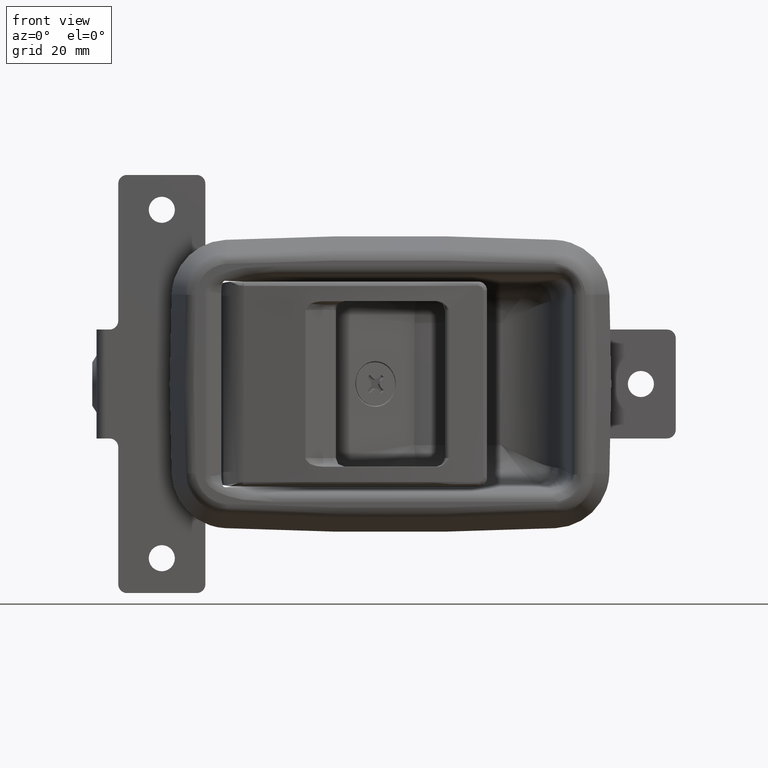
[diagram: clean part render]
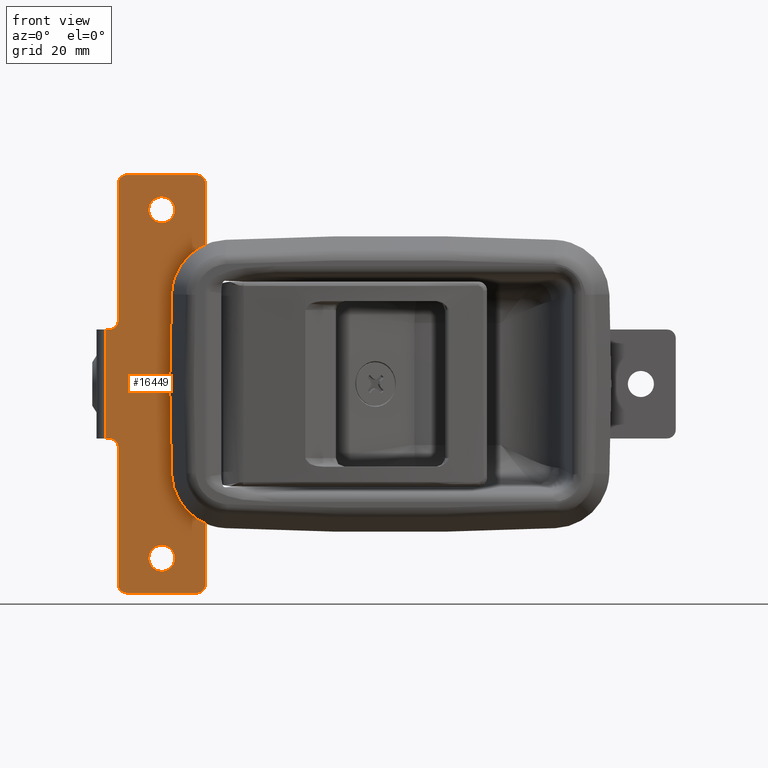
[diagram: same view with one face highlighted and labeled with its STEP entity id]
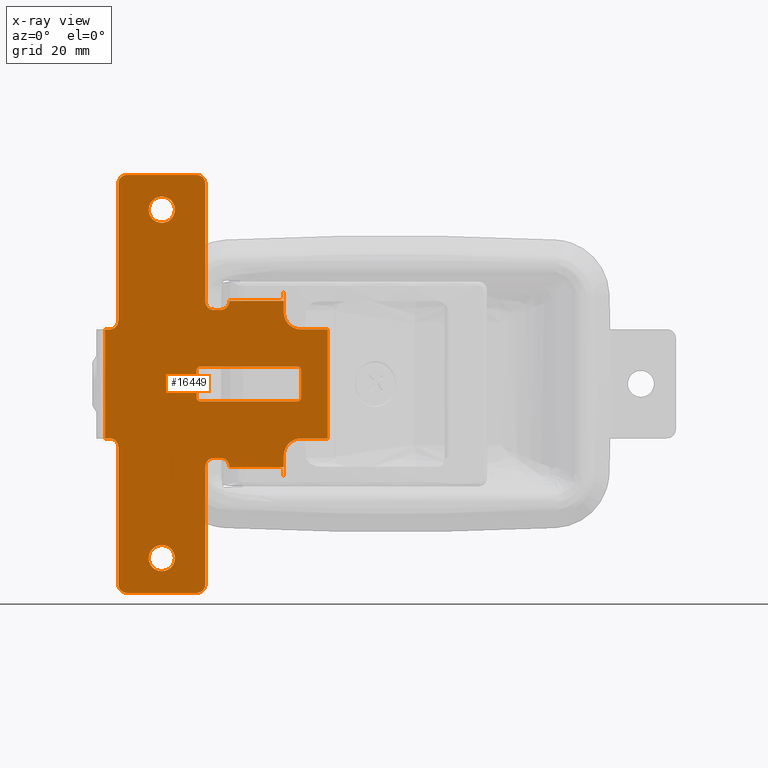
[diagram: x-ray of the same camera — body ghosted, the highlighted face saturated]
A machine part, front view. The second image highlights one B-rep face of the part: STEP entity #16449.
The next image is the same camera in x-ray: the body ghosted, the highlighted face saturated — about 0% of this face is hidden behind the body in this view.
In plain terms, the highlighted face is a freeform B-spline surface patch.
Its self-contained STEP definition (entity closure, byte-faithful):
#13076=CARTESIAN_POINT('',(-50.397271736084249,6.999999999999779,-42.140151655007962));
#13077=VERTEX_POINT('',#13076);
#13083=CARTESIAN_POINT('',(-49.500000000000803,6.999999999999779,-40.000402198321268));
#13084=VERTEX_POINT('',#13083);
#13085=CARTESIAN_POINT('',(-49.500000000000803,6.999999999999779,-40.000402198321268));
#13086=CARTESIAN_POINT('',(-49.499915021884469,6.999999999999769,-40.273393507080513));
#13087=CARTESIAN_POINT('',(-49.571605345450557,6.999999999999798,-40.794490806161029));
#13088=CARTESIAN_POINT('',(-49.881096098646950,6.999999999999767,-41.532484478625619));
#13089=CARTESIAN_POINT('',(-50.202493710219272,6.999999999999794,-41.948874950895707));
#13090=CARTESIAN_POINT('',(-50.397271736084249,6.999999999999779,-42.140151655007962));
#13091=B_SPLINE_CURVE_WITH_KNOTS('',3,(#13085,#13086,#13087,#13088,#13089,#13090),.UNSPECIFIED.,.F.,.U.,(4,1,1,4),(0.000000034594755,0.818969943332492,1.563463228283870,2.382433446539172),.UNSPECIFIED.);
#13092=EDGE_CURVE('',#13084,#13077,#13091,.T.);
#13094=CARTESIAN_POINT('',(-52.500000000000000,6.999999999999780,-37.000399999999999));
#13095=VERTEX_POINT('',#13094);
#13096=CARTESIAN_POINT('',(-52.500000000000000,6.999999999999780,-37.000399999999999));
#13097=CARTESIAN_POINT('',(-52.279107852984048,6.999999999999807,-37.000364353057002));
#13098=CARTESIAN_POINT('',(-51.812782814987912,6.999999999999749,-37.052112312268370));
#13099=CARTESIAN_POINT('',(-51.090971899863177,6.999999999999794,-37.310310896146689));
#13100=CARTESIAN_POINT('',(-50.360574108365043,6.999999999999783,-37.824497091868757));
#13101=CARTESIAN_POINT('',(-49.856138953298981,6.999999999999757,-38.504714276906910));
#13102=CARTESIAN_POINT('',(-49.563418472098803,6.999999999999798,-39.264143457633352));
#13103=CARTESIAN_POINT('',(-49.499911287116397,6.999999999999770,-39.730416920678657));
#13104=CARTESIAN_POINT('',(-49.500000000000803,6.999999999999779,-40.000402198321268));
#13105=B_SPLINE_CURVE_WITH_KNOTS('',3,(#13096,#13097,#13098,#13099,#13100,#13101,#13102,#13103,#13104),.UNSPECIFIED.,.F.,.U.,(4,1,1,1,1,1,4),(0.000000119910341,0.662691549555273,1.399027470609024,2.282632009719410,3.313475670911278,3.902547721432993,4.712508472048155),.UNSPECIFIED.);
#13106=EDGE_CURVE('',#13095,#13084,#13105,.T.);
#13108=CARTESIAN_POINT('',(-55.499999999999197,6.999999999999780,-40.000397801678751));
#13109=VERTEX_POINT('',#13108);
#13110=CARTESIAN_POINT('',(-55.499999999999197,6.999999999999780,-40.000397801678751));
#13111=CARTESIAN_POINT('',(-55.500515740335402,6.999999999999774,-39.583047256196537));
#13112=CARTESIAN_POINT('',(-55.380366606545657,6.999999999999774,-39.018962657673072));
#13113=CARTESIAN_POINT('',(-55.020501193802993,6.999999999999789,-38.346179224878249));
#13114=CARTESIAN_POINT('',(-54.686742957367038,6.999999999999764,-37.918452606027763));
#13115=CARTESIAN_POINT('',(-54.163926478736613,6.999999999999794,-37.467301247367999));
#13116=CARTESIAN_POINT('',(-53.432587850246883,6.999999999999774,-37.099195247213132));
#13117=CARTESIAN_POINT('',(-52.819081340911040,6.999999999999783,-37.000251826227341));
#13118=CARTESIAN_POINT('',(-52.500000000000000,6.999999999999780,-37.000399999999999));
#13119=B_SPLINE_CURVE_WITH_KNOTS('',3,(#13110,#13111,#13112,#13113,#13114,#13115,#13116,#13117,#13118),.UNSPECIFIED.,.F.,.U.,(4,1,1,1,1,1,4),(0.000000122921777,1.251763058692100,1.693578903280385,2.282630815331864,2.871653583737160,3.755285162575500,4.712505993965913),.UNSPECIFIED.);
#13120=EDGE_CURVE('',#13109,#13095,#13119,.T.);
#13122=CARTESIAN_POINT('',(-54.639750868406743,6.999999999999780,-42.103127496413308));
#13123=VERTEX_POINT('',#13122);
#13124=CARTESIAN_POINT('',(-54.639750868406743,6.999999999999780,-42.103127496413308));
#13125=CARTESIAN_POINT('',(-54.929398377762212,6.999999999999746,-41.809154654073232));
#13126=CARTESIAN_POINT('',(-55.356755408142497,6.999999999999854,-41.140911878216158));
#13127=CARTESIAN_POINT('',(-55.500314057512043,6.999999999999720,-40.364512244998643));
#13128=CARTESIAN_POINT('',(-55.499999999999197,6.999999999999780,-40.000397801678751));
#13129=B_SPLINE_CURVE_WITH_KNOTS('',3,(#13124,#13125,#13126,#13127,#13128),.UNSPECIFIED.,.F.,.U.,(4,1,4),(0.000000049651736,1.237840974256071,2.330073837828799),.UNSPECIFIED.);
#13130=EDGE_CURVE('',#13123,#13109,#13129,.T.);
#13166=CARTESIAN_POINT('',(-52.500000000000000,6.999999999999780,-43.000399999999999));
#13167=VERTEX_POINT('',#13166);
#13168=CARTESIAN_POINT('',(-52.500000000000000,6.999999999999780,-43.000399999999999));
#13169=CARTESIAN_POINT('',(-52.822642057992823,6.999999999999772,-43.000585053264267));
#13170=CARTESIAN_POINT('',(-53.343651045187350,6.999999999999786,-42.915482703621763));
#13171=CARTESIAN_POINT('',(-54.071726342065027,6.999999999999775,-42.588668359376733));
#13172=CARTESIAN_POINT('',(-54.448475736909131,6.999999999999780,-42.297905204125662));
#13173=CARTESIAN_POINT('',(-54.639750868406743,6.999999999999780,-42.103127496413308));
#13174=B_SPLINE_CURVE_WITH_KNOTS('',3,(#13168,#13169,#13170,#13171,#13172,#13173),.UNSPECIFIED.,.F.,.U.,(4,1,1,4),(0.000000034540104,0.967873704512001,1.563464382117405,2.382435204734763),.UNSPECIFIED.);
#13175=EDGE_CURVE('',#13167,#13123,#13174,.T.);
#13177=CARTESIAN_POINT('',(-50.397271736084249,6.999999999999779,-42.140151655007962));
#13178=CARTESIAN_POINT('',(-50.691243696684303,6.999999999999792,-42.429797785669479));
#13179=CARTESIAN_POINT('',(-51.359487893226557,6.999999999999753,-42.857157351149631));
#13180=CARTESIAN_POINT('',(-52.135885200983957,6.999999999999792,-43.000712339304080));
#13181=CARTESIAN_POINT('',(-52.500000000000000,6.999999999999780,-43.000399999999999));
#13182=B_SPLINE_CURVE_WITH_KNOTS('',3,(#13177,#13178,#13179,#13180,#13181),.UNSPECIFIED.,.F.,.U.,(4,1,4),(0.000000049599672,1.237840030941143,2.330072062219895),.UNSPECIFIED.);
#13183=EDGE_CURVE('',#13077,#13167,#13182,.T.);
#13272=CARTESIAN_POINT('',(-50.397271736084249,6.999999999999779,37.860248344992037));
#13273=VERTEX_POINT('',#13272);
#13279=CARTESIAN_POINT('',(-49.500000000000803,6.999999999999779,39.999997801678717));
#13280=VERTEX_POINT('',#13279);
#13281=CARTESIAN_POINT('',(-49.500000000000803,6.999999999999779,39.999997801678717));
#13282=CARTESIAN_POINT('',(-49.499817106153927,6.999999999999775,39.677355585545449));
#13283=CARTESIAN_POINT('',(-49.584912796515617,6.999999999999785,39.156345510135317));
#13284=CARTESIAN_POINT('',(-49.911737291225769,6.999999999999771,38.428277560781822));
#13285=CARTESIAN_POINT('',(-50.202488533235893,6.999999999999772,38.051518046914190));
#13286=CARTESIAN_POINT('',(-50.397271736084249,6.999999999999779,37.860248344992037));
#13287=B_SPLINE_CURVE_WITH_KNOTS('',3,(#13281,#13282,#13283,#13284,#13285,#13286),.UNSPECIFIED.,.F.,.U.,(4,1,1,4),(0.000000034594272,0.967872990247855,1.563463228284002,2.382433446539150),.UNSPECIFIED.);
#13288=EDGE_CURVE('',#13280,#13273,#13287,.T.);
#13290=CARTESIAN_POINT('',(-52.500000000000000,6.999999999999780,43.0));
#13291=VERTEX_POINT('',#13290);
#13292=CARTESIAN_POINT('',(-52.500000000000000,6.999999999999780,43.0));
#13293=CARTESIAN_POINT('',(-52.180904270041772,6.999999999999769,43.000200106539637));
#13294=CARTESIAN_POINT('',(-51.714703555315417,6.999999999999800,42.924863208586217));
#13295=CARTESIAN_POINT('',(-51.100822945843092,6.999999999999767,42.670509736029622));
#13296=CARTESIAN_POINT('',(-50.517230615457827,6.999999999999798,42.301288633988271));
#13297=CARTESIAN_POINT('',(-49.948528679503099,6.999999999999771,41.673795602870143));
#13298=CARTESIAN_POINT('',(-49.576683731106499,6.999999999999778,40.834462298434232));
#13299=CARTESIAN_POINT('',(-49.499922089325239,6.999999999999786,40.269981439212792));
#13300=CARTESIAN_POINT('',(-49.500000000000803,6.999999999999779,39.999997801678717));
#13301=B_SPLINE_CURVE_WITH_KNOTS('',3,(#13292,#13293,#13294,#13295,#13296,#13297,#13298,#13299,#13300),.UNSPECIFIED.,.F.,.U.,(4,1,1,1,1,1,4),(0.000000119918266,0.957219569237008,1.399027470612974,1.988122082081094,3.018934395677817,3.902547721433423,4.712508472048163),.UNSPECIFIED.);
#13302=EDGE_CURVE('',#13291,#13280,#13301,.T.);
#13304=CARTESIAN_POINT('',(-55.499999999999190,6.999999999999780,40.000002198321262));
#13305=VERTEX_POINT('',#13304);
#13306=CARTESIAN_POINT('',(-55.499999999999190,6.999999999999780,40.000002198321262));
#13307=CARTESIAN_POINT('',(-55.500132818561767,6.999999999999783,40.319073011132261));
#13308=CARTESIAN_POINT('',(-55.393369600634607,6.999999999999782,40.981719837193268));
#13309=CARTESIAN_POINT('',(-54.982518528866343,6.999999999999782,41.750536596369550));
#13310=CARTESIAN_POINT('',(-54.438124050215173,6.999999999999772,42.321992669687098));
#13311=CARTESIAN_POINT('',(-53.841913621423032,6.999999999999794,42.720515049955331));
#13312=CARTESIAN_POINT('',(-53.162677962510237,6.999999999999754,42.954108250615057));
#13313=CARTESIAN_POINT('',(-52.696341805930743,6.999999999999803,43.000015634157279));
#13314=CARTESIAN_POINT('',(-52.500000000000000,6.999999999999780,43.0));
#13315=B_SPLINE_CURVE_WITH_KNOTS('',3,(#13306,#13307,#13308,#13309,#13310,#13311,#13312,#13313,#13314),.UNSPECIFIED.,.F.,.U.,(4,1,1,1,1,1,4),(0.000000122918992,0.957219068403689,1.988121039895063,2.577120609119618,3.313473929090527,4.123466470492354,4.712505993965944),.UNSPECIFIED.);
#13316=EDGE_CURVE('',#13305,#13291,#13315,.T.);
#13318=CARTESIAN_POINT('',(-54.639750868406743,6.999999999999780,37.897272503586692));
#13319=VERTEX_POINT('',#13318);
#13320=CARTESIAN_POINT('',(-54.639750868406743,6.999999999999780,37.897272503586692));
#13321=CARTESIAN_POINT('',(-54.861059450735098,6.999999999999789,38.122213222471707));
#13322=CARTESIAN_POINT('',(-55.160160982369682,6.999999999999778,38.542704857663360));
#13323=CARTESIAN_POINT('',(-55.438025403879053,6.999999999999786,39.271912182519372));
#13324=CARTESIAN_POINT('',(-55.500077623816637,6.999999999999774,39.733011312248998));
#13325=CARTESIAN_POINT('',(-55.499999999999190,6.999999999999780,40.000002198321262));
#13326=B_SPLINE_CURVE_WITH_KNOTS('',3,(#13320,#13321,#13322,#13323,#13324,#13325),.UNSPECIFIED.,.F.,.U.,(4,1,1,4),(0.000000049651116,0.946609162470924,1.529101274212253,2.330073837828830),.UNSPECIFIED.);
#13327=EDGE_CURVE('',#13319,#13305,#13326,.T.);
#13363=CARTESIAN_POINT('',(-52.500000000000000,6.999999999999780,37.0));
#13364=VERTEX_POINT('',#13363);
#13365=CARTESIAN_POINT('',(-52.500000000000000,6.999999999999780,37.0));
#13366=CARTESIAN_POINT('',(-52.772991745464942,6.999999999999789,36.999914425652499));
#13367=CARTESIAN_POINT('',(-53.294088562901123,6.999999999999764,37.071605350689957));
#13368=CARTESIAN_POINT('',(-54.032083459133560,6.999999999999779,37.381096450817360));
#13369=CARTESIAN_POINT('',(-54.448473869047518,6.999999999999785,37.702493665574792));
#13370=CARTESIAN_POINT('',(-54.639750868406743,6.999999999999780,37.897272503586692));
#13371=B_SPLINE_CURVE_WITH_KNOTS('',3,(#13365,#13366,#13367,#13368,#13369,#13370),.UNSPECIFIED.,.F.,.U.,(4,1,1,4),(0.000000034539853,0.818970547751233,1.563464382117327,2.382435204734762),.UNSPECIFIED.);
#13372=EDGE_CURVE('',#13364,#13319,#13371,.T.);
#13374=CARTESIAN_POINT('',(-50.397271736084249,6.999999999999779,37.860248344992037));
#13375=CARTESIAN_POINT('',(-50.656760458748082,6.999999999999786,37.604827966700647));
#13376=CARTESIAN_POINT('',(-51.311127457472097,6.999999999999762,37.162961367421417));
#13377=CARTESIAN_POINT('',(-52.087318498110598,6.999999999999790,36.999508900209101));
#13378=CARTESIAN_POINT('',(-52.500000000000000,6.999999999999780,37.0));
#13379=B_SPLINE_CURVE_WITH_KNOTS('',3,(#13374,#13375,#13376,#13377,#13378),.UNSPECIFIED.,.F.,.U.,(4,1,4),(0.000000049600241,1.092232080852542,2.330072062219885),.UNSPECIFIED.);
#13380=EDGE_CURVE('',#13273,#13364,#13379,.T.);
#13432=CARTESIAN_POINT('',(-14.407146339087159,6.999999999999821,-12.500000000000000));
#13433=VERTEX_POINT('',#13432);
#13448=CARTESIAN_POINT('',(-14.407146339087159,6.999999999999821,12.500000000000000));
#13449=VERTEX_POINT('',#13448);
#13457=CARTESIAN_POINT('',(-14.407146339087159,6.999999999999821,-12.500000000000000));
#13458=CARTESIAN_POINT('',(-14.407146339087159,6.999999999999821,12.500000000000000));
#13459=QUASI_UNIFORM_CURVE('',1,(#13457,#13458),.UNSPECIFIED.,.F.,.U.);
#13460=EDGE_CURVE('',#13433,#13449,#13459,.T.);
#13581=CARTESIAN_POINT('',(-65.500000000000000,6.999999999999821,-12.500000000000000));
#13582=VERTEX_POINT('',#13581);
#13596=CARTESIAN_POINT('',(-65.500000000000000,6.999999999999821,12.500000000000000));
#13597=VERTEX_POINT('',#13596);
#13598=CARTESIAN_POINT('',(-65.500000000000000,6.999999999999821,12.500000000000000));
#13599=CARTESIAN_POINT('',(-65.500000000000000,6.999999999999821,-12.500000000000000));
#13600=QUASI_UNIFORM_CURVE('',1,(#13598,#13599),.UNSPECIFIED.,.F.,.U.);
#13601=EDGE_CURVE('',#13597,#13582,#13600,.T.);
#13667=CARTESIAN_POINT('',(-24.538799999999998,6.999999999999821,21.100000000000001));
#13668=VERTEX_POINT('',#13667);
#13674=CARTESIAN_POINT('',(-24.500000000000000,6.999999999999780,21.100000000000001));
#13675=VERTEX_POINT('',#13674);
#13676=CARTESIAN_POINT('',(-24.538799999999998,6.999999999999821,21.100000000000001));
#13677=CARTESIAN_POINT('',(-24.500000000000000,6.999999999999780,21.100000000000001));
#13678=QUASI_UNIFORM_CURVE('',1,(#13676,#13677),.UNSPECIFIED.,.F.,.U.);
#13679=EDGE_CURVE('',#13668,#13675,#13678,.T.);
#13726=CARTESIAN_POINT('',(-24.500000000000000,6.999999999999780,-21.100000000000001));
#13727=VERTEX_POINT('',#13726);
#13739=CARTESIAN_POINT('',(-24.538799999999998,6.999999999999821,-21.100000000000001));
#13740=VERTEX_POINT('',#13739);
#13741=CARTESIAN_POINT('',(-24.500000000000000,6.999999999999780,-21.100000000000001));
#13742=CARTESIAN_POINT('',(-24.538799999999998,6.999999999999821,-21.100000000000001));
#13743=QUASI_UNIFORM_CURVE('',1,(#13741,#13742),.UNSPECIFIED.,.F.,.U.);
#13744=EDGE_CURVE('',#13727,#13740,#13743,.T.);
#13772=CARTESIAN_POINT('',(-37.0,6.999999999999780,-19.100000000000001));
#13773=VERTEX_POINT('',#13772);
#13774=CARTESIAN_POINT('',(-24.538799999999998,6.999999999999821,-19.100000000000001));
#13775=VERTEX_POINT('',#13774);
#13776=CARTESIAN_POINT('',(-37.0,6.999999999999780,-19.100000000000001));
#13777=CARTESIAN_POINT('',(-24.538799999999998,6.999999999999821,-19.100000000000001));
#13778=QUASI_UNIFORM_CURVE('',1,(#13776,#13777),.UNSPECIFIED.,.F.,.U.);
#13779=EDGE_CURVE('',#13773,#13775,#13778,.T.);
#13910=CARTESIAN_POINT('',(-24.538799999999998,6.999999999999821,-19.100000000000001));
#13911=CARTESIAN_POINT('',(-24.538799999999998,6.999999999999821,-21.100000000000001));
#13912=QUASI_UNIFORM_CURVE('',1,(#13910,#13911),.UNSPECIFIED.,.F.,.U.);
#13913=EDGE_CURVE('',#13775,#13740,#13912,.T.);
#13991=CARTESIAN_POINT('',(-24.538799999999998,6.999999999999821,19.100000000000001));
#13992=VERTEX_POINT('',#13991);
#13993=CARTESIAN_POINT('',(-37.0,6.999999999999821,19.100000000000001));
#13994=VERTEX_POINT('',#13993);
#13995=CARTESIAN_POINT('',(-24.538799999999998,6.999999999999821,19.100000000000001));
#13996=CARTESIAN_POINT('',(-37.0,6.999999999999821,19.100000000000001));
#13997=QUASI_UNIFORM_CURVE('',1,(#13995,#13996),.UNSPECIFIED.,.F.,.U.);
#13998=EDGE_CURVE('',#13992,#13994,#13997,.T.);
#14131=CARTESIAN_POINT('',(-24.538799999999998,6.999999999999821,19.100000000000001));
#14132=CARTESIAN_POINT('',(-24.538799999999998,6.999999999999821,21.100000000000001));
#14133=QUASI_UNIFORM_CURVE('',1,(#14131,#14132),.UNSPECIFIED.,.F.,.U.);
#14134=EDGE_CURVE('',#13992,#13668,#14133,.T.);
#14153=CARTESIAN_POINT('',(-43.538800000000002,6.999999999999901,4.0));
#14154=VERTEX_POINT('',#14153);
#14155=CARTESIAN_POINT('',(-44.538800000000002,6.999999999999901,3.0));
#14156=VERTEX_POINT('',#14155);
#14157=CARTESIAN_POINT('',(-43.538800000000002,6.999999999999901,4.0));
#14158=CARTESIAN_POINT('',(-43.694309905793787,6.999999999999909,4.000284208847530));
#14159=CARTESIAN_POINT('',(-43.923104275329209,6.999999999999894,3.945471579985655));
#14160=CARTESIAN_POINT('',(-44.199092552034863,6.999999999999908,3.765862319266904));
#14161=CARTESIAN_POINT('',(-44.354589974838447,6.999999999999905,3.594299400717589));
#14162=CARTESIAN_POINT('',(-44.497146400171410,6.999999999999890,3.335310182363074));
#14163=CARTESIAN_POINT('',(-44.538991723426093,6.999999999999911,3.139123575359947));
#14164=CARTESIAN_POINT('',(-44.538800000000002,6.999999999999901,3.0));
#14165=B_SPLINE_CURVE_WITH_KNOTS('',3,(#14157,#14158,#14159,#14160,#14161,#14162,#14163,#14164),.UNSPECIFIED.,.F.,.U.,(4,1,1,1,1,4),(0.000000316539192,0.466343486453466,0.687263051410439,0.981751020764432,1.153582026486022,1.570835744415496),.UNSPECIFIED.);
#14166=EDGE_CURVE('',#14154,#14156,#14165,.T.);
#14201=CARTESIAN_POINT('',(-21.500000000000000,6.999999999999901,4.0));
#14202=VERTEX_POINT('',#14201);
#14203=CARTESIAN_POINT('',(-21.500000000000000,6.999999999999901,4.0));
#14204=CARTESIAN_POINT('',(-43.538800000000002,6.999999999999901,4.0));
#14205=QUASI_UNIFORM_CURVE('',1,(#14203,#14204),.UNSPECIFIED.,.F.,.U.);
#14206=EDGE_CURVE('',#14202,#14154,#14205,.T.);
#14238=CARTESIAN_POINT('',(-20.500000000000000,6.999999999999901,3.0));
#14239=VERTEX_POINT('',#14238);
#14240=CARTESIAN_POINT('',(-20.500000000000000,6.999999999999901,3.0));
#14241=CARTESIAN_POINT('',(-20.499988649702491,6.999999999999905,3.098161484066635));
#14242=CARTESIAN_POINT('',(-20.533887464722419,6.999999999999901,3.327295164917384));
#14243=CARTESIAN_POINT('',(-20.691147990141879,6.999999999999893,3.621442481356050));
#14244=CARTESIAN_POINT('',(-20.942459266899601,6.999999999999935,3.849165957845933));
#14245=CARTESIAN_POINT('',(-21.213659177159471,6.999999999999768,3.973335952433078));
#14246=CARTESIAN_POINT('',(-21.410006909707501,7.000000000000043,4.000026482414646));
#14247=CARTESIAN_POINT('',(-21.500000000000000,6.999999999999901,4.0));
#14248=B_SPLINE_CURVE_WITH_KNOTS('',3,(#14240,#14241,#14242,#14243,#14244,#14245,#14246,#14247),.UNSPECIFIED.,.F.,.U.,(4,1,1,1,1,4),(0.000000316537550,0.294521889950027,0.687263051410395,0.981751020764692,1.300856679780036,1.570835744415502),.UNSPECIFIED.);
#14249=EDGE_CURVE('',#14239,#14202,#14248,.T.);
#14278=CARTESIAN_POINT('',(-20.500000000000000,6.999999999999901,-3.0));
#14279=VERTEX_POINT('',#14278);
#14280=CARTESIAN_POINT('',(-20.500000000000000,6.999999999999901,-3.0));
#14281=CARTESIAN_POINT('',(-20.500000000000000,6.999999999999901,3.0));
#14282=QUASI_UNIFORM_CURVE('',1,(#14280,#14281),.UNSPECIFIED.,.F.,.U.);
#14283=EDGE_CURVE('',#14279,#14239,#14282,.T.);
#14315=CARTESIAN_POINT('',(-21.500000000000000,6.999999999999901,-4.0));
#14316=VERTEX_POINT('',#14315);
#14317=CARTESIAN_POINT('',(-21.500000000000000,6.999999999999901,-4.0));
#14318=CARTESIAN_POINT('',(-21.344515457851148,6.999999999999915,-4.000263238618043));
#14319=CARTESIAN_POINT('',(-21.074786844945201,6.999999999999879,-3.935757696222223));
#14320=CARTESIAN_POINT('',(-20.774736547651809,6.999999999999889,-3.713129333464472));
#14321=CARTESIAN_POINT('',(-20.560381009217149,6.999999999999939,-3.408855179983521));
#14322=CARTESIAN_POINT('',(-20.499728758587960,6.999999999999868,-3.155500683120750));
#14323=CARTESIAN_POINT('',(-20.500000000000000,6.999999999999901,-3.0));
#14324=B_SPLINE_CURVE_WITH_KNOTS('',3,(#14317,#14318,#14319,#14320,#14321,#14322,#14323),.UNSPECIFIED.,.F.,.U.,(4,1,1,1,4),(0.000000316539592,0.466343486453889,0.809914846752917,1.104490577724666,1.570835744415537),.UNSPECIFIED.);
#14325=EDGE_CURVE('',#14316,#14279,#14324,.T.);
#14353=CARTESIAN_POINT('',(-43.538800000000002,6.999999999999901,-4.0));
#14354=VERTEX_POINT('',#14353);
#14355=CARTESIAN_POINT('',(-43.538800000000002,6.999999999999901,-4.0));
#14356=CARTESIAN_POINT('',(-21.500000000000000,6.999999999999901,-4.0));
#14357=QUASI_UNIFORM_CURVE('',1,(#14355,#14356),.UNSPECIFIED.,.F.,.U.);
#14358=EDGE_CURVE('',#14354,#14316,#14357,.T.);
#14390=CARTESIAN_POINT('',(-44.538800000000002,6.999999999999901,-3.0));
#14391=VERTEX_POINT('',#14390);
#14392=CARTESIAN_POINT('',(-44.538800000000002,6.999999999999901,-3.0));
#14393=CARTESIAN_POINT('',(-44.539330963898848,6.999999999999909,-3.180135669998898));
#14394=CARTESIAN_POINT('',(-44.468440694373761,6.999999999999890,-3.433202414132396));
#14395=CARTESIAN_POINT('',(-44.253980992878773,6.999999999999917,-3.714822739010366));
#14396=CARTESIAN_POINT('',(-43.980234209349433,6.999999999999877,-3.928696788878384));
#14397=CARTESIAN_POINT('',(-43.710694767699863,6.999999999999931,-4.000378646256801));
#14398=CARTESIAN_POINT('',(-43.538800000000002,6.999999999999901,-4.0));
#14399=B_SPLINE_CURVE_WITH_KNOTS('',3,(#14392,#14393,#14394,#14395,#14396,#14397,#14398),.UNSPECIFIED.,.F.,.U.,(4,1,1,1,4),(0.000000316540120,0.539993994382229,0.760920445867800,1.055397118809246,1.570835744415493),.UNSPECIFIED.);
#14400=EDGE_CURVE('',#14391,#14354,#14399,.T.);
#14428=CARTESIAN_POINT('',(-44.538800000000002,6.999999999999901,3.0));
#14429=CARTESIAN_POINT('',(-44.538800000000002,6.999999999999901,-3.0));
#14430=QUASI_UNIFORM_CURVE('',1,(#14428,#14429),.UNSPECIFIED.,.F.,.U.);
#14431=EDGE_CURVE('',#14156,#14391,#14430,.T.);
#14796=CARTESIAN_POINT('',(-37.0,6.999999999999780,19.0));
#14797=VERTEX_POINT('',#14796);
#14818=CARTESIAN_POINT('',(-39.0,6.999999999999780,17.0));
#14819=VERTEX_POINT('',#14818);
#14825=CARTESIAN_POINT('',(-37.0,6.999999999999780,19.0));
#14826=CARTESIAN_POINT('',(-36.999872033744573,6.999999999999779,18.787273671511180));
#14827=CARTESIAN_POINT('',(-37.055370701184209,6.999999999999775,18.443750943333111));
#14828=CARTESIAN_POINT('',(-37.275219974855638,6.999999999999780,17.947721149411699));
#14829=CARTESIAN_POINT('',(-37.631253357376721,6.999999999999795,17.491172308618431));
#14830=CARTESIAN_POINT('',(-38.231110609014173,6.999999999999766,17.101033297608531));
#14831=CARTESIAN_POINT('',(-38.738159209588702,6.999999999999794,16.999719132942861));
#14832=CARTESIAN_POINT('',(-39.0,6.999999999999780,17.0));
#14833=B_SPLINE_CURVE_WITH_KNOTS('',3,(#14825,#14826,#14827,#14828,#14829,#14830,#14831,#14832),.UNSPECIFIED.,.F.,.U.,(4,1,1,1,1,4),(0.000000287134696,0.638142234995864,1.030865319388375,1.619883366374840,2.356253688306702,3.141671488696531),.UNSPECIFIED.);
#14834=EDGE_CURVE('',#14797,#14819,#14833,.T.);
#14844=CARTESIAN_POINT('',(-40.500000000000000,6.999999999999780,17.0));
#14845=VERTEX_POINT('',#14844);
#14846=CARTESIAN_POINT('',(-40.500000000000000,6.999999999999780,17.0));
#14847=CARTESIAN_POINT('',(-39.0,6.999999999999780,17.0));
#14848=QUASI_UNIFORM_CURVE('',1,(#14846,#14847),.UNSPECIFIED.,.F.,.U.);
#14849=EDGE_CURVE('',#14845,#14819,#14848,.T.);
#14895=CARTESIAN_POINT('',(-42.500000000000000,6.999999999999780,19.0));
#14896=VERTEX_POINT('',#14895);
#14902=CARTESIAN_POINT('',(-40.500000000000000,6.999999999999780,17.0));
#14903=CARTESIAN_POINT('',(-40.794623657697421,6.999999999999779,16.999536340369630));
#14904=CARTESIAN_POINT('',(-41.219643661825110,6.999999999999779,17.095718123743030));
#14905=CARTESIAN_POINT('',(-41.713170421945307,6.999999999999778,17.391705728680090));
#14906=CARTESIAN_POINT('',(-42.075108199148367,6.999999999999792,17.727752560388229));
#14907=CARTESIAN_POINT('',(-42.405456916630499,6.999999999999765,18.263837134368380));
#14908=CARTESIAN_POINT('',(-42.500278102130643,6.999999999999798,18.738167968656420));
#14909=CARTESIAN_POINT('',(-42.500000000000000,6.999999999999780,19.0));
#14910=B_SPLINE_CURVE_WITH_KNOTS('',3,(#14902,#14903,#14904,#14905,#14906,#14907,#14908,#14909),.UNSPECIFIED.,.F.,.U.,(4,1,1,1,1,4),(0.000000287143277,0.883597182738423,1.276337533546723,1.718073068151204,2.356253688307657,3.141671488696474),.UNSPECIFIED.);
#14911=EDGE_CURVE('',#14845,#14896,#14910,.T.);
#14921=CARTESIAN_POINT('',(-42.500000000000000,6.999999999999780,46.0));
#14922=VERTEX_POINT('',#14921);
#14923=CARTESIAN_POINT('',(-42.500000000000000,6.999999999999780,46.0));
#14924=CARTESIAN_POINT('',(-42.500000000000000,6.999999999999780,19.0));
#14925=QUASI_UNIFORM_CURVE('',1,(#14923,#14924),.UNSPECIFIED.,.F.,.U.);
#14926=EDGE_CURVE('',#14922,#14896,#14925,.T.);
#14958=CARTESIAN_POINT('',(-44.500000000000000,6.999999999999780,48.0));
#14959=VERTEX_POINT('',#14958);
#14960=CARTESIAN_POINT('',(-44.500000000000000,6.999999999999780,48.0));
#14961=CARTESIAN_POINT('',(-44.270900976179909,6.999999999999777,48.000170101882333));
#14962=CARTESIAN_POINT('',(-43.894683848583917,6.999999999999789,47.934585110644349));
#14963=CARTESIAN_POINT('',(-43.362043177710063,6.999999999999768,47.674674929792531));
#14964=CARTESIAN_POINT('',(-42.939921534418737,6.999999999999804,47.301489844089573));
#14965=CARTESIAN_POINT('',(-42.591321692055580,6.999999999999750,46.719765541592203));
#14966=CARTESIAN_POINT('',(-42.499705631069190,6.999999999999800,46.261842936268053));
#14967=CARTESIAN_POINT('',(-42.500000000000000,6.999999999999780,46.0));
#14968=B_SPLINE_CURVE_WITH_KNOTS('',3,(#14960,#14961,#14962,#14963,#14964,#14965,#14966,#14967),.UNSPECIFIED.,.F.,.U.,(4,1,1,1,1,4),(0.000000287135278,0.687238992318359,1.129064130187640,1.767177705974685,2.356253688306662,3.141671488696554),.UNSPECIFIED.);
#14969=EDGE_CURVE('',#14959,#14922,#14968,.T.);
#14998=CARTESIAN_POINT('',(-60.500000000000000,6.999999999999780,48.0));
#14999=VERTEX_POINT('',#14998);
#15000=CARTESIAN_POINT('',(-60.500000000000000,6.999999999999780,48.0));
#15001=CARTESIAN_POINT('',(-44.500000000000000,6.999999999999780,48.0));
#15002=QUASI_UNIFORM_CURVE('',1,(#15000,#15001),.UNSPECIFIED.,.F.,.U.);
#15003=EDGE_CURVE('',#14999,#14959,#15002,.T.);
#15035=CARTESIAN_POINT('',(-62.500000000000000,6.999999999999780,46.0));
#15036=VERTEX_POINT('',#15035);
#15037=CARTESIAN_POINT('',(-62.500000000000000,6.999999999999780,46.0));
#15038=CARTESIAN_POINT('',(-62.500116246491253,6.999999999999794,46.212718740902083));
#15039=CARTESIAN_POINT('',(-62.431495835021920,6.999999999999764,46.638091520640288));
#15040=CARTESIAN_POINT('',(-62.118727555913821,6.999999999999777,47.241278257478179));
#15041=CARTESIAN_POINT('',(-61.667603797680343,6.999999999999822,47.660315129371433));
#15042=CARTESIAN_POINT('',(-61.105306545338401,6.999999999999728,47.934571663938421));
#15043=CARTESIAN_POINT('',(-60.729097600334462,6.999999999999802,48.000168890926702));
#15044=CARTESIAN_POINT('',(-60.500000000000000,6.999999999999780,48.0));
#15045=B_SPLINE_CURVE_WITH_KNOTS('',3,(#15037,#15038,#15039,#15040,#15041,#15042,#15043,#15044),.UNSPECIFIED.,.F.,.U.,(4,1,1,1,1,4),(0.000000287139069,0.638142234999407,1.276337533545278,2.012607645646495,2.454432783515177,3.141671488696471),.UNSPECIFIED.);
#15046=EDGE_CURVE('',#15036,#14999,#15045,.T.);
#15075=CARTESIAN_POINT('',(-62.500000000000000,6.999999999999780,14.500000000000000));
#15076=VERTEX_POINT('',#15075);
#15077=CARTESIAN_POINT('',(-62.500000000000000,6.999999999999780,14.500000000000000));
#15078=CARTESIAN_POINT('',(-62.500000000000000,6.999999999999780,46.0));
#15079=QUASI_UNIFORM_CURVE('',1,(#15077,#15078),.UNSPECIFIED.,.F.,.U.);
#15080=EDGE_CURVE('',#15076,#15036,#15079,.T.);
#15126=CARTESIAN_POINT('',(-64.500000000000000,6.999999999999780,12.500000000000000));
#15127=VERTEX_POINT('',#15126);
#15133=CARTESIAN_POINT('',(-62.500000000000000,6.999999999999780,14.500000000000000));
#15134=CARTESIAN_POINT('',(-62.499885416326151,6.999999999999786,14.287279598194340));
#15135=CARTESIAN_POINT('',(-62.568504542872880,6.999999999999781,13.861902111249520));
#15136=CARTESIAN_POINT('',(-62.835556066760603,6.999999999999764,13.347072632498660));
#15137=CARTESIAN_POINT('',(-63.205394264027049,6.999999999999796,12.949090034618081));
#15138=CARTESIAN_POINT('',(-63.731288697430656,6.999999999999772,12.606804276951630));
#15139=CARTESIAN_POINT('',(-64.205384748930371,6.999999999999766,12.499537581843830));
#15140=CARTESIAN_POINT('',(-64.500000000000000,6.999999999999780,12.500000000000000));
#15141=B_SPLINE_CURVE_WITH_KNOTS('',3,(#15133,#15134,#15135,#15136,#15137,#15138,#15139,#15140),.UNSPECIFIED.,.F.,.U.,(4,1,1,1,1,4),(0.000000287133143,0.638142234994526,1.276337533542020,1.718073068148285,2.258074593099028,3.141671488696494),.UNSPECIFIED.);
#15142=EDGE_CURVE('',#15076,#15127,#15141,.T.);
#15158=CARTESIAN_POINT('',(-65.500000000000000,6.999999999999821,12.500000000000000));
#15159=CARTESIAN_POINT('',(-64.500000000000000,6.999999999999780,12.500000000000000));
#15160=QUASI_UNIFORM_CURVE('',1,(#15158,#15159),.UNSPECIFIED.,.F.,.U.);
#15161=EDGE_CURVE('',#13597,#15127,#15160,.T.);
#15179=CARTESIAN_POINT('',(-64.500000000000000,6.999999999999780,-12.500000000000000));
#15180=VERTEX_POINT('',#15179);
#15181=CARTESIAN_POINT('',(-64.500000000000000,6.999999999999780,-12.500000000000000));
#15182=CARTESIAN_POINT('',(-65.500000000000000,6.999999999999821,-12.500000000000000));
#15183=QUASI_UNIFORM_CURVE('',1,(#15181,#15182),.UNSPECIFIED.,.F.,.U.);
#15184=EDGE_CURVE('',#15180,#13582,#15183,.T.);
#15237=CARTESIAN_POINT('',(-62.500000000000000,6.999999999999780,-14.500000000000000));
#15238=VERTEX_POINT('',#15237);
#15244=CARTESIAN_POINT('',(-64.500000000000000,6.999999999999780,-12.500000000000000));
#15245=CARTESIAN_POINT('',(-64.238158860634016,6.999999999999785,-12.499717273771150));
#15246=CARTESIAN_POINT('',(-63.731112974236417,6.999999999999788,-12.601044456832231));
#15247=CARTESIAN_POINT('',(-63.159163211570423,6.999999999999749,-12.973006076003900));
#15248=CARTESIAN_POINT('',(-62.824658824784649,6.999999999999843,-13.381013378375350));
#15249=CARTESIAN_POINT('',(-62.575001714677398,6.999999999999732,-13.862040685738661));
#15250=CARTESIAN_POINT('',(-62.499691571917197,6.999999999999818,-14.238139084880380));
#15251=CARTESIAN_POINT('',(-62.500000000000000,6.999999999999780,-14.500000000000000));
#15252=B_SPLINE_CURVE_WITH_KNOTS('',3,(#15244,#15245,#15246,#15247,#15248,#15249,#15250,#15251),.UNSPECIFIED.,.F.,.U.,(4,1,1,1,1,4),(0.000000287133636,0.785418087524479,1.521788409456852,2.012607645644544,2.356253688306194,3.141671488696570),.UNSPECIFIED.);
#15253=EDGE_CURVE('',#15180,#15238,#15252,.T.);
#15263=CARTESIAN_POINT('',(-62.500000000000000,6.999999999999780,-46.000399999999999));
#15264=VERTEX_POINT('',#15263);
#15265=CARTESIAN_POINT('',(-62.500000000000000,6.999999999999780,-46.000399999999999));
#15266=CARTESIAN_POINT('',(-62.500000000000000,6.999999999999780,-14.500000000000000));
#15267=QUASI_UNIFORM_CURVE('',1,(#15265,#15266),.UNSPECIFIED.,.F.,.U.);
#15268=EDGE_CURVE('',#15264,#15238,#15267,.T.);
#15300=CARTESIAN_POINT('',(-60.500000000000000,6.999999999999780,-48.000399999999999));
#15301=VERTEX_POINT('',#15300);
#15302=CARTESIAN_POINT('',(-60.500000000000000,6.999999999999780,-48.000399999999999));
#15303=CARTESIAN_POINT('',(-60.729086015326700,6.999999999999789,-48.000550408305322));
#15304=CARTESIAN_POINT('',(-61.203540544807510,6.999999999999774,-47.918006940849132));
#15305=CARTESIAN_POINT('',(-61.749915234530597,6.999999999999775,-47.599761638169198));
#15306=CARTESIAN_POINT('',(-62.097065401755728,6.999999999999790,-47.225604714569350));
#15307=CARTESIAN_POINT('',(-62.398799982528132,6.999999999999727,-46.736342049752373));
#15308=CARTESIAN_POINT('',(-62.500579290594523,6.999999999999837,-46.311424261481967));
#15309=CARTESIAN_POINT('',(-62.500000000000000,6.999999999999780,-46.000399999999999));
#15310=B_SPLINE_CURVE_WITH_KNOTS('',3,(#15302,#15303,#15304,#15305,#15306,#15307,#15308,#15309),.UNSPECIFIED.,.F.,.U.,(4,1,1,1,1,4),(0.000000287141328,0.687238992322298,1.423598707686751,1.865334242291497,2.208977835778337,3.141671488696458),.UNSPECIFIED.);
#15311=EDGE_CURVE('',#15301,#15264,#15310,.T.);
#15340=CARTESIAN_POINT('',(-44.500000000000000,6.999999999999780,-48.000399999999999));
#15341=VERTEX_POINT('',#15340);
#15342=CARTESIAN_POINT('',(-44.500000000000000,6.999999999999780,-48.000399999999999));
#15343=CARTESIAN_POINT('',(-60.500000000000000,6.999999999999780,-48.000399999999999));
#15344=QUASI_UNIFORM_CURVE('',1,(#15342,#15343),.UNSPECIFIED.,.F.,.U.);
#15345=EDGE_CURVE('',#15341,#15301,#15344,.T.);
#15377=CARTESIAN_POINT('',(-42.500000000000000,6.999999999999780,-46.000399999999999));
#15378=VERTEX_POINT('',#15377);
#15379=CARTESIAN_POINT('',(-42.500000000000000,6.999999999999780,-46.000399999999999));
#15380=CARTESIAN_POINT('',(-42.499411040930951,6.999999999999784,-46.311418395047731));
#15381=CARTESIAN_POINT('',(-42.612973236177687,6.999999999999769,-46.785373304625310));
#15382=CARTESIAN_POINT('',(-42.961162326080583,6.999999999999785,-47.306216618282747));
#15383=CARTESIAN_POINT('',(-43.274756607405827,6.999999999999773,-47.597487739323768));
#15384=CARTESIAN_POINT('',(-43.764070529968301,6.999999999999778,-47.899193535069742));
#15385=CARTESIAN_POINT('',(-44.188970557918097,6.999999999999756,-48.000981347729322));
#15386=CARTESIAN_POINT('',(-44.500000000000000,6.999999999999780,-48.000399999999999));
#15387=B_SPLINE_CURVE_WITH_KNOTS('',3,(#15379,#15380,#15381,#15382,#15383,#15384,#15385,#15386),.UNSPECIFIED.,.F.,.U.,(4,1,1,1,1,4),(0.000000287140503,0.932693940059337,1.423598707686906,1.865334242291716,2.208977835778485,3.141671488696471),.UNSPECIFIED.);
#15388=EDGE_CURVE('',#15378,#15341,#15387,.T.);
#15417=CARTESIAN_POINT('',(-42.500000000000000,6.999999999999780,-19.0));
#15418=VERTEX_POINT('',#15417);
#15419=CARTESIAN_POINT('',(-42.500000000000000,6.999999999999780,-19.0));
#15420=CARTESIAN_POINT('',(-42.500000000000000,6.999999999999780,-46.000399999999999));
#15421=QUASI_UNIFORM_CURVE('',1,(#15419,#15420),.UNSPECIFIED.,.F.,.U.);
#15422=EDGE_CURVE('',#15418,#15378,#15421,.T.);
#15468=CARTESIAN_POINT('',(-40.500000000000000,6.999999999999780,-17.0));
#15469=VERTEX_POINT('',#15468);
#15475=CARTESIAN_POINT('',(-42.500000000000000,6.999999999999780,-19.0));
#15476=CARTESIAN_POINT('',(-42.500279286504359,6.999999999999790,-18.738165369145069));
#15477=CARTESIAN_POINT('',(-42.405454630642112,6.999999999999766,-18.263840456240100));
#15478=CARTESIAN_POINT('',(-42.075110629393187,6.999999999999798,-17.727749354908230));
#15479=CARTESIAN_POINT('',(-41.725230543735407,6.999999999999758,-17.402919781728372));
#15480=CARTESIAN_POINT('',(-41.235932644263087,6.999999999999816,-17.101204693744460));
#15481=CARTESIAN_POINT('',(-40.811028940053760,6.999999999999795,-16.999419125909949));
#15482=CARTESIAN_POINT('',(-40.500000000000000,6.999999999999780,-17.0));
#15483=B_SPLINE_CURVE_WITH_KNOTS('',3,(#15475,#15476,#15477,#15478,#15479,#15480,#15481,#15482),.UNSPECIFIED.,.F.,.U.,(4,1,1,1,1,4),(0.000000287142174,0.785418087531084,1.423598707687838,1.865334242292365,2.208977835778769,3.141671488696511),.UNSPECIFIED.);
#15484=EDGE_CURVE('',#15418,#15469,#15483,.T.);
#15494=CARTESIAN_POINT('',(-39.0,6.999999999999780,-17.0));
#15495=VERTEX_POINT('',#15494);
#15496=CARTESIAN_POINT('',(-39.0,6.999999999999780,-17.0));
#15497=CARTESIAN_POINT('',(-40.500000000000000,6.999999999999780,-17.0));
#15498=QUASI_UNIFORM_CURVE('',1,(#15496,#15497),.UNSPECIFIED.,.F.,.U.);
#15499=EDGE_CURVE('',#15495,#15469,#15498,.T.);
#15545=CARTESIAN_POINT('',(-37.0,6.999999999999780,-19.0));
#15546=VERTEX_POINT('',#15545);
#15552=CARTESIAN_POINT('',(-39.0,6.999999999999780,-17.0));
#15553=CARTESIAN_POINT('',(-38.738132642857209,6.999999999999773,-16.999684465129270));
#15554=CARTESIAN_POINT('',(-38.362058173940291,6.999999999999791,-17.075025303844370));
#15555=CARTESIAN_POINT('',(-37.851790494228347,6.999999999999762,-17.339723506475298));
#15556=CARTESIAN_POINT('',(-37.488620967075697,6.999999999999807,-17.653033019632929));
#15557=CARTESIAN_POINT('',(-37.112984391162144,6.999999999999751,-18.215034426936839));
#15558=CARTESIAN_POINT('',(-36.999408732873484,6.999999999999800,-18.688981520675910));
#15559=CARTESIAN_POINT('',(-37.0,6.999999999999780,-19.0));
#15560=B_SPLINE_CURVE_WITH_KNOTS('',3,(#15552,#15553,#15554,#15555,#15556,#15557,#15558,#15559),.UNSPECIFIED.,.F.,.U.,(4,1,1,1,1,4),(0.000000287140076,0.785418087528789,1.129064130189369,1.718073068149598,2.208977835777261,3.141671488696547),.UNSPECIFIED.);
#15561=EDGE_CURVE('',#15495,#15546,#15560,.T.);
#15591=CARTESIAN_POINT('',(-24.500000000000000,6.999999999999780,-16.500000000000000));
#15592=VERTEX_POINT('',#15591);
#15593=CARTESIAN_POINT('',(-24.500000000000000,6.999999999999780,-16.500000000000000));
#15594=CARTESIAN_POINT('',(-24.500000000000000,6.999999999999780,-21.100000000000001));
#15595=QUASI_UNIFORM_CURVE('',1,(#15593,#15594),.UNSPECIFIED.,.F.,.U.);
#15596=EDGE_CURVE('',#15592,#13727,#15595,.T.);
#15643=CARTESIAN_POINT('',(-20.500000000000000,6.999999999999780,-12.500000000000000));
#15644=VERTEX_POINT('',#15643);
#15650=CARTESIAN_POINT('',(-24.500000000000000,6.999999999999780,-16.500000000000000));
#15651=CARTESIAN_POINT('',(-24.500268028691281,6.999999999999798,-16.058190799518101));
#15652=CARTESIAN_POINT('',(-24.368532832920359,6.999999999999764,-15.272935265079539));
#15653=CARTESIAN_POINT('',(-23.914163484734662,6.999999999999795,-14.356476152332190));
#15654=CARTESIAN_POINT('',(-23.390749989857440,6.999999999999761,-13.702582898790670));
#15655=CARTESIAN_POINT('',(-22.780750700822519,6.999999999999779,-13.176351039760171));
#15656=CARTESIAN_POINT('',(-21.825046327536551,6.999999999999767,-12.657826412444519));
#15657=CARTESIAN_POINT('',(-21.007324588089539,6.999999999999774,-12.499477119158680));
#15658=CARTESIAN_POINT('',(-20.500000000000000,6.999999999999780,-12.500000000000000));
#15659=B_SPLINE_CURVE_WITH_KNOTS('',3,(#15650,#15651,#15652,#15653,#15654,#15655,#15656,#15657,#15658),.UNSPECIFIED.,.F.,.U.,(4,1,1,1,1,1,4),(0.000000169850829,1.325363219315212,2.356235761873020,3.043448552822743,3.828813682957655,4.761506417482558,6.283224731519106),.UNSPECIFIED.);
#15660=EDGE_CURVE('',#15592,#15644,#15659,.T.);
#15710=CARTESIAN_POINT('',(-14.407146339087159,6.999999999999821,-12.500000000000000));
#15711=CARTESIAN_POINT('',(-20.500000000000000,6.999999999999780,-12.500000000000000));
#15712=QUASI_UNIFORM_CURVE('',1,(#15710,#15711),.UNSPECIFIED.,.F.,.U.);
#15713=EDGE_CURVE('',#13433,#15644,#15712,.T.);
#15961=CARTESIAN_POINT('',(-20.500000000000000,6.999999999999780,12.500000000000000));
#15962=VERTEX_POINT('',#15961);
#15968=CARTESIAN_POINT('',(-20.500000000000000,6.999999999999780,12.500000000000000));
#15969=CARTESIAN_POINT('',(-14.407146339087159,6.999999999999821,12.500000000000000));
#15970=QUASI_UNIFORM_CURVE('',1,(#15968,#15969),.UNSPECIFIED.,.F.,.U.);
#15971=EDGE_CURVE('',#15962,#13449,#15970,.T.);
#16031=CARTESIAN_POINT('',(-24.500000000000000,6.999999999999780,16.500000000000000));
#16032=VERTEX_POINT('',#16031);
#16038=CARTESIAN_POINT('',(-20.500000000000000,6.999999999999780,12.500000000000000));
#16039=CARTESIAN_POINT('',(-20.892705268080210,6.999999999999785,12.499867228591480));
#16040=CARTESIAN_POINT('',(-21.678045894321428,6.999999999999765,12.616535728756171));
#16041=CARTESIAN_POINT('',(-22.605106727833579,6.999999999999801,13.054963178913409));
#16042=CARTESIAN_POINT('',(-23.297403956450900,6.999999999999764,13.609268495971691));
#16043=CARTESIAN_POINT('',(-23.823652485632579,6.999999999999789,14.219246254737721));
#16044=CARTESIAN_POINT('',(-24.342170915205369,6.999999999999776,15.174956024139879));
#16045=CARTESIAN_POINT('',(-24.500523869537680,6.999999999999781,15.992674515651171));
#16046=CARTESIAN_POINT('',(-24.500000000000000,6.999999999999780,16.500000000000000));
#16047=B_SPLINE_CURVE_WITH_KNOTS('',3,(#16038,#16039,#16040,#16041,#16042,#16043,#16044,#16045,#16046),.UNSPECIFIED.,.F.,.U.,(4,1,1,1,1,1,4),(0.000000169852344,1.178093431269287,2.356235761872073,3.043448552821575,3.828813682956445,4.761506417481776,6.283224731519105),.UNSPECIFIED.);
#16048=EDGE_CURVE('',#15962,#16032,#16047,.T.);
#16064=CARTESIAN_POINT('',(-24.500000000000000,6.999999999999780,21.100000000000001));
#16065=CARTESIAN_POINT('',(-24.500000000000000,6.999999999999780,16.500000000000000));
#16066=QUASI_UNIFORM_CURVE('',1,(#16064,#16065),.UNSPECIFIED.,.F.,.U.);
#16067=EDGE_CURVE('',#13675,#16032,#16066,.T.);
#16356=CARTESIAN_POINT('',(-37.0,6.999999999999780,19.0));
#16357=CARTESIAN_POINT('',(-37.0,6.999999999999821,19.100000000000001));
#16358=QUASI_UNIFORM_CURVE('',1,(#16356,#16357),.UNSPECIFIED.,.F.,.U.);
#16359=EDGE_CURVE('',#14797,#13994,#16358,.T.);
#16370=CARTESIAN_POINT('',(-37.0,6.999999999999780,-19.100000000000001));
#16371=CARTESIAN_POINT('',(-37.0,6.999999999999780,-19.0));
#16372=QUASI_UNIFORM_CURVE('',1,(#16370,#16371),.UNSPECIFIED.,.F.,.U.);
#16373=EDGE_CURVE('',#13773,#15546,#16372,.T.);
#16380=CARTESIAN_POINT('',(-68.052087941334733,6.999999999999821,52.795219793932603));
#16381=CARTESIAN_POINT('',(-68.052087941334733,6.999999999999821,-52.795622368863981));
#16382=CARTESIAN_POINT('',(-11.855057027335301,6.999999999999821,52.795219793932603));
#16383=CARTESIAN_POINT('',(-11.855057027335301,6.999999999999821,-52.795622368863981));
#16384=B_SPLINE_SURFACE_WITH_KNOTS('',1,1,((#16380,#16382),(#16381,#16383)),.UNSPECIFIED.,.F.,.F.,.U.,(2,2),(2,2),(0.041708334948495,0.958291687403247),(0.041708334948495,0.958291687403247),.UNSPECIFIED.);
#16385=ORIENTED_EDGE('',*,*,#15713,.F.);
#16386=ORIENTED_EDGE('',*,*,#13460,.T.);
#16387=ORIENTED_EDGE('',*,*,#15971,.F.);
#16388=ORIENTED_EDGE('',*,*,#16048,.T.);
#16389=ORIENTED_EDGE('',*,*,#16067,.F.);
#16390=ORIENTED_EDGE('',*,*,#13679,.F.);
#16391=ORIENTED_EDGE('',*,*,#14134,.F.);
#16392=ORIENTED_EDGE('',*,*,#13998,.T.);
#16393=ORIENTED_EDGE('',*,*,#16359,.F.);
#16394=ORIENTED_EDGE('',*,*,#14834,.T.);
#16395=ORIENTED_EDGE('',*,*,#14849,.F.);
#16396=ORIENTED_EDGE('',*,*,#14911,.T.);
#16397=ORIENTED_EDGE('',*,*,#14926,.F.);
#16398=ORIENTED_EDGE('',*,*,#14969,.F.);
#16399=ORIENTED_EDGE('',*,*,#15003,.F.);
#16400=ORIENTED_EDGE('',*,*,#15046,.F.);
#16401=ORIENTED_EDGE('',*,*,#15080,.F.);
#16402=ORIENTED_EDGE('',*,*,#15142,.T.);
#16403=ORIENTED_EDGE('',*,*,#15161,.F.);
#16404=ORIENTED_EDGE('',*,*,#13601,.T.);
#16405=ORIENTED_EDGE('',*,*,#15184,.F.);
#16406=ORIENTED_EDGE('',*,*,#15253,.T.);
#16407=ORIENTED_EDGE('',*,*,#15268,.F.);
#16408=ORIENTED_EDGE('',*,*,#15311,.F.);
#16409=ORIENTED_EDGE('',*,*,#15345,.F.);
#16410=ORIENTED_EDGE('',*,*,#15388,.F.);
#16411=ORIENTED_EDGE('',*,*,#15422,.F.);
#16412=ORIENTED_EDGE('',*,*,#15484,.T.);
#16413=ORIENTED_EDGE('',*,*,#15499,.F.);
#16414=ORIENTED_EDGE('',*,*,#15561,.T.);
#16415=ORIENTED_EDGE('',*,*,#16373,.F.);
#16416=ORIENTED_EDGE('',*,*,#13779,.T.);
#16417=ORIENTED_EDGE('',*,*,#13913,.T.);
#16418=ORIENTED_EDGE('',*,*,#13744,.F.);
#16419=ORIENTED_EDGE('',*,*,#15596,.F.);
#16420=ORIENTED_EDGE('',*,*,#15660,.T.);
#16421=EDGE_LOOP('',(#16385,#16386,#16387,#16388,#16389,#16390,#16391,#16392,#16393,#16394,#16395,#16396,#16397,#16398,#16399,#16400,#16401,#16402,#16403,#16404,#16405,#16406,#16407,#16408,#16409,#16410,#16411,#16412,#16413,#16414,#16415,#16416,#16417,#16418,#16419,#16420));
#16422=FACE_OUTER_BOUND('',#16421,.T.);
#16423=ORIENTED_EDGE('',*,*,#14431,.F.);
#16424=ORIENTED_EDGE('',*,*,#14166,.F.);
#16425=ORIENTED_EDGE('',*,*,#14206,.F.);
#16426=ORIENTED_EDGE('',*,*,#14249,.F.);
#16427=ORIENTED_EDGE('',*,*,#14283,.F.);
#16428=ORIENTED_EDGE('',*,*,#14325,.F.);
#16429=ORIENTED_EDGE('',*,*,#14358,.F.);
#16430=ORIENTED_EDGE('',*,*,#14400,.F.);
#16431=EDGE_LOOP('',(#16423,#16424,#16425,#16426,#16427,#16428,#16429,#16430));
#16432=FACE_BOUND('',#16431,.T.);
#16433=ORIENTED_EDGE('',*,*,#13316,.T.);
#16434=ORIENTED_EDGE('',*,*,#13302,.T.);
#16435=ORIENTED_EDGE('',*,*,#13288,.T.);
#16436=ORIENTED_EDGE('',*,*,#13380,.T.);
#16437=ORIENTED_EDGE('',*,*,#13372,.T.);
#16438=ORIENTED_EDGE('',*,*,#13327,.T.);
#16439=EDGE_LOOP('',(#16433,#16434,#16435,#16436,#16437,#16438));
#16440=FACE_BOUND('',#16439,.T.);
#16441=ORIENTED_EDGE('',*,*,#13120,.T.);
#16442=ORIENTED_EDGE('',*,*,#13106,.T.);
#16443=ORIENTED_EDGE('',*,*,#13092,.T.);
#16444=ORIENTED_EDGE('',*,*,#13183,.T.);
#16445=ORIENTED_EDGE('',*,*,#13175,.T.);
#16446=ORIENTED_EDGE('',*,*,#13130,.T.);
#16447=EDGE_LOOP('',(#16441,#16442,#16443,#16444,#16445,#16446));
#16448=FACE_BOUND('',#16447,.T.);
#16449=ADVANCED_FACE('',(#16422,#16432,#16440,#16448),#16384,.T.);